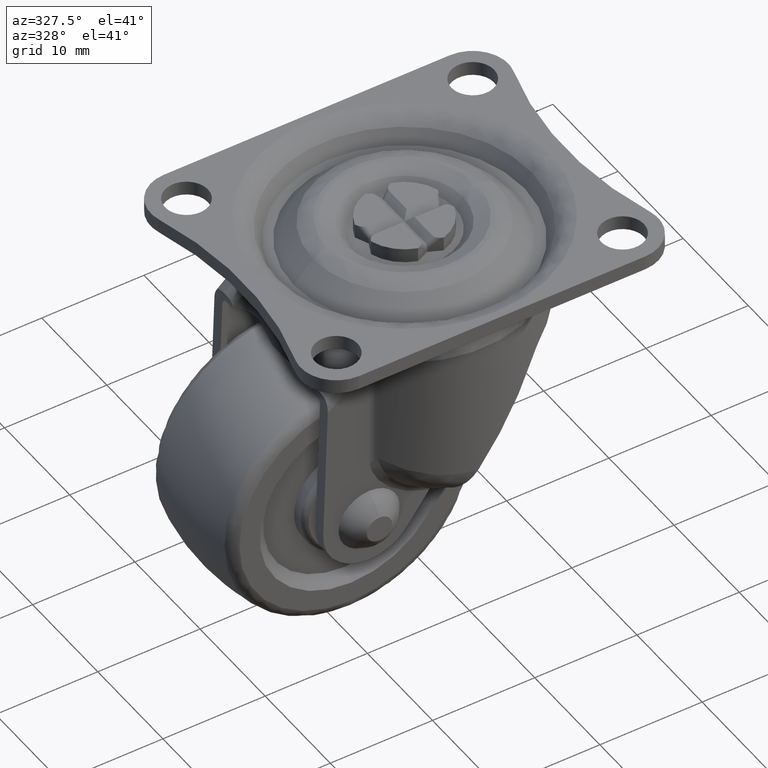
[diagram: clean part render]
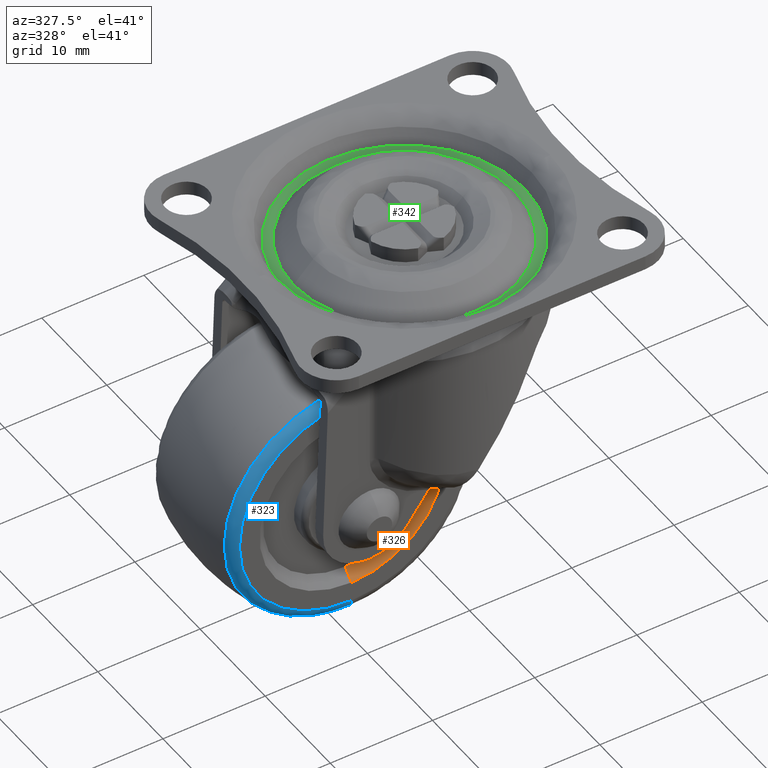
[diagram: same view with three faces highlighted in distinct colors, each labeled with its STEP entity id]
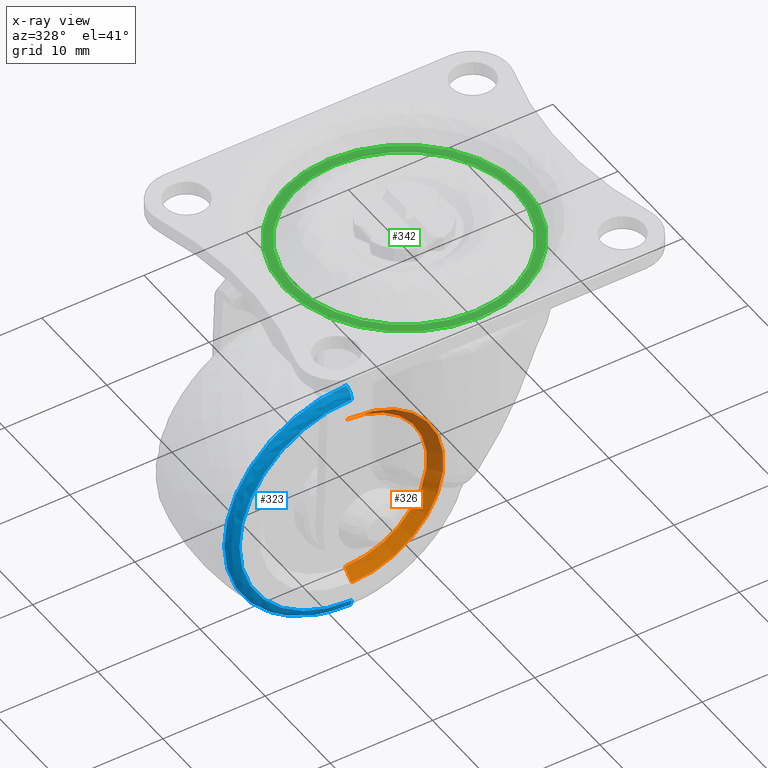
[diagram: x-ray of the same camera — body ghosted, the three highlighted faces saturated]
A machine part, auxiliary view with three faces highlighted in distinct colors.
The next image is the same camera in x-ray (body ghosted, the three faces saturated) — at least one of them is partly hidden behind the body in this view.
Their STEP definitions:

[orange] entity #326 — the highlighted face is a freeform B-spline surface patch.
#326=ADVANCED_FACE('',(#1505),#1504,.F.);
#1504=( BOUNDED_SURFACE() B_SPLINE_SURFACE( 2,1,((#4223,#4224),(#4225,#4226),(#4227,#4228),(#4229,#4230),(#4231,#4232)), .UNSPECIFIED.,.F.,.F.,.F.) B_SPLINE_SURFACE_WITH_KNOTS((3,2,3),(2,2),(0.00000000000E+00,5.00000000000E-01,1.00000000000E+00),(0.00000000000E+00,1.00000000000E+00), .UNSPECIFIED. ) GEOMETRIC_REPRESENTATION_ITEM() RATIONAL_B_SPLINE_SURFACE(((1.00000000000E+00,1.00000000000E+00),(7.07106781187E-01,7.07106781187E-01),(1.00000000000E+00,1.00000000000E+00),(7.07106781187E-01,7.07106781187E-01),(1.00000000000E+00,1.00000000000E+00))) REPRESENTATION_ITEM('') SURFACE() );
#1505=FACE_OUTER_BOUND('',#4233,.T.);
#4223=CARTESIAN_POINT('',(-9.00000000000E+00,-5.00000000000E+00,-3.04999980000E+01));
#4224=CARTESIAN_POINT('',(-9.00000000000E+00,-6.00000000000E+00,-3.14999980000E+01));
#4225=CARTESIAN_POINT('',(-1.00000000000E+00,-5.00000000000E+00,-3.04999980000E+01));
#4226=CARTESIAN_POINT('',(0.00000000000E+00,-6.00000000000E+00,-3.14999980000E+01));
#4227=CARTESIAN_POINT('',(-1.00000000000E+00,-5.00000000000E+00,-2.24999980000E+01));
#4228=CARTESIAN_POINT('',(0.00000000000E+00,-6.00000000000E+00,-2.24999980000E+01));
#4229=CARTESIAN_POINT('',(-1.00000000000E+00,-5.00000000000E+00,-1.44999980000E+01));
#4230=CARTESIAN_POINT('',(-1.25607396695E-15,-6.00000000000E+00,-1.34999980000E+01));
#4231=CARTESIAN_POINT('',(-9.00000000000E+00,-5.00000000000E+00,-1.44999980000E+01));
#4232=CARTESIAN_POINT('',(-9.00000000000E+00,-6.00000000000E+00,-1.34999980000E+01));
#4233=EDGE_LOOP('',(#5857,#5858,#5859,#5860));
#5857=ORIENTED_EDGE('',*,*,#6652,.T.);
#5858=ORIENTED_EDGE('',*,*,#6681,.F.);
#5859=ORIENTED_EDGE('',*,*,#6653,.F.);
#5860=ORIENTED_EDGE('',*,*,#6682,.T.);
#6652=EDGE_CURVE('',#8509,#8508,#8516,.T.);
#6653=EDGE_CURVE('',#8522,#8523,#8524,.T.);
#6681=EDGE_CURVE('',#8523,#8508,#8702,.T.);
#6682=EDGE_CURVE('',#8522,#8509,#8708,.T.);
#8508=VERTEX_POINT('',#11890);
#8509=VERTEX_POINT('',#11891);
#8516=CIRCLE('',#11899,9.00000000000E+00);
#8522=VERTEX_POINT('',#11900);
#8523=VERTEX_POINT('',#11901);
#8524=CIRCLE('',#11905,8.00000000000E+00);
#8702=(BOUNDED_CURVE() B_SPLINE_CURVE(1,(#12004,#12005),.UNSPECIFIED.,.F.,.F.) B_SPLINE_CURVE_WITH_KNOTS((2,2),(0.00000000000E+00,1.00000000000E+00),.UNSPECIFIED.) CURVE() GEOMETRIC_REPRESENTATION_ITEM() RATIONAL_B_SPLINE_CURVE((1.00000000000E+00,1.00000000000E+00)) REPRESENTATION_ITEM('') );
#8708=(BOUNDED_CURVE() B_SPLINE_CURVE(1,(#12006,#12007),.UNSPECIFIED.,.F.,.F.) B_SPLINE_CURVE_WITH_KNOTS((2,2),(0.00000000000E+00,1.00000000000E+00),.UNSPECIFIED.) CURVE() GEOMETRIC_REPRESENTATION_ITEM() RATIONAL_B_SPLINE_CURVE((7.50000000000E-01,7.50000000000E-01)) REPRESENTATION_ITEM('') );
#11890=CARTESIAN_POINT('',(-9.00000000000E+00,-6.00000000000E+00,-1.34999980000E+01));
#11891=CARTESIAN_POINT('',(-9.00000000000E+00,-6.00000000000E+00,-3.14999980000E+01));
#11896=CARTESIAN_POINT('',(-9.00000000000E+00,-6.00000000000E+00,-2.24999980000E+01));
#11897=DIRECTION('',(0.00000000000E+00,-1.00000000000E+00,-0.00000000000E+00));
#11898=DIRECTION('',(-1.22460635382E-16,0.00000000000E+00,-1.00000000000E+00));
#11899=AXIS2_PLACEMENT_3D('',#11896,#11897,#11898);
#11900=CARTESIAN_POINT('',(-9.00000000000E+00,-5.00000000000E+00,-3.04999980000E+01));
#11901=CARTESIAN_POINT('',(-9.00000000000E+00,-5.00000000000E+00,-1.44999980000E+01));
#11902=CARTESIAN_POINT('',(-9.00000000000E+00,-5.00000000000E+00,-2.24999980000E+01));
#11903=DIRECTION('',(0.00000000000E+00,-1.00000000000E+00,-0.00000000000E+00));
#11904=DIRECTION('',(-1.22460635382E-16,0.00000000000E+00,-1.00000000000E+00));
#11905=AXIS2_PLACEMENT_3D('',#11902,#11903,#11904);
#12004=CARTESIAN_POINT('',(-9.00000000000E+00,-5.00000000000E+00,-1.44999980000E+01));
#12005=CARTESIAN_POINT('',(-9.00000000000E+00,-6.00000000000E+00,-1.34999980000E+01));
#12006=CARTESIAN_POINT('',(-9.00000000000E+00,-5.00000000000E+00,-3.04999980000E+01));
#12007=CARTESIAN_POINT('',(-9.00000000000E+00,-6.00000000000E+00,-3.14999980000E+01));

[blue] entity #323 — the highlighted face is a freeform B-spline surface patch.
#323=ADVANCED_FACE('',(#1475),#1474,.T.);
#1474=( BOUNDED_SURFACE() B_SPLINE_SURFACE( 2,2,((#4160,#4161,#4162,#4163,#4164),(#4165,#4166,#4167,#4168,#4169),(#4170,#4171,#4172,#4173,#4174),(#4175,#4176,#4177,#4178,#4179),(#4180,#4181,#4182,#4183,#4184)), .UNSPECIFIED.,.F.,.F.,.F.) B_SPLINE_SURFACE_WITH_KNOTS((3,2,3),(3,2,3),(0.00000000000E+00,5.00000000000E-01,1.00000000000E+00),(0.00000000000E+00,5.00000000000E-01,1.00000000000E+00), .UNSPECIFIED. ) GEOMETRIC_REPRESENTATION_ITEM() RATIONAL_B_SPLINE_SURFACE(((1.00000000000E+00,7.77281587757E-01,1.00000000000E+00,7.77281587757E-01,1.00000000000E+00),(7.07106781187E-01,5.49621081595E-01,7.07106781187E-01,5.49621081595E-01,7.07106781187E-01),(1.00000000000E+00,7.77281587757E-01,1.00000000000E+00,7.77281587757E-01,1.00000000000E+00),(7.07106781187E-01,5.49621081595E-01,7.07106781187E-01,5.49621081595E-01,7.07106781187E-01),(1.00000000000E+00,7.77281587757E-01,1.00000000000E+00,7.77281587757E-01,1.00000000000E+00))) REPRESENTATION_ITEM('') SURFACE() );
#1475=FACE_OUTER_BOUND('',#4185,.T.);
#4160=CARTESIAN_POINT('',(-9.00000000000E+00,-5.20833333333E+00,-1.05485509285E+01));
#4161=CARTESIAN_POINT('',(-9.00000000000E+00,-6.00000000000E+00,-1.07171815980E+01));
#4162=CARTESIAN_POINT('',(-9.00000000000E+00,-6.00000000000E+00,-1.15266088114E+01));
#4163=CARTESIAN_POINT('',(-9.00000000000E+00,-6.00000000000E+00,-1.23360360248E+01));
#4164=CARTESIAN_POINT('',(-9.00000000000E+00,-5.20833333333E+00,-1.25046666942E+01));
#4165=CARTESIAN_POINT('',(-2.09514470715E+01,-5.20833333333E+00,-1.05485509285E+01));
#4166=CARTESIAN_POINT('',(-2.07828164020E+01,-6.00000000000E+00,-1.07171815980E+01));
#4167=CARTESIAN_POINT('',(-1.99733891886E+01,-6.00000000000E+00,-1.15266088114E+01));
#4168=CARTESIAN_POINT('',(-1.91639619752E+01,-6.00000000000E+00,-1.23360360248E+01));
#4169=CARTESIAN_POINT('',(-1.89953313058E+01,-5.20833333333E+00,-1.25046666942E+01));
#4170=CARTESIAN_POINT('',(-2.09514470715E+01,-5.20833333333E+00,-2.24999980000E+01));
#4171=CARTESIAN_POINT('',(-2.07828164020E+01,-6.00000000000E+00,-2.24999980000E+01));
#4172=CARTESIAN_POINT('',(-1.99733891886E+01,-6.00000000000E+00,-2.24999980000E+01));
#4173=CARTESIAN_POINT('',(-1.91639619752E+01,-6.00000000000E+00,-2.24999980000E+01));
#4174=CARTESIAN_POINT('',(-1.89953313058E+01,-5.20833333333E+00,-2.24999980000E+01));
#4175=CARTESIAN_POINT('',(-2.09514470715E+01,-5.20833333333E+00,-3.44514450715E+01));
#4176=CARTESIAN_POINT('',(-2.07828164020E+01,-6.00000000000E+00,-3.42828144020E+01));
#4177=CARTESIAN_POINT('',(-1.99733891886E+01,-6.00000000000E+00,-3.34733871886E+01));
#4178=CARTESIAN_POINT('',(-1.91639619752E+01,-6.00000000000E+00,-3.26639599752E+01));
#4179=CARTESIAN_POINT('',(-1.89953313058E+01,-5.20833333333E+00,-3.24953293058E+01));
#4180=CARTESIAN_POINT('',(-9.00000000000E+00,-5.20833333333E+00,-3.44514450715E+01));
#4181=CARTESIAN_POINT('',(-9.00000000000E+00,-6.00000000000E+00,-3.42828144020E+01));
#4182=CARTESIAN_POINT('',(-9.00000000000E+00,-6.00000000000E+00,-3.34733871886E+01));
#4183=CARTESIAN_POINT('',(-9.00000000000E+00,-6.00000000000E+00,-3.26639599752E+01));
#4184=CARTESIAN_POINT('',(-9.00000000000E+00,-5.20833333333E+00,-3.24953293058E+01));
#4185=EDGE_LOOP('',(#5845,#5846,#5847,#5848));
#5845=ORIENTED_EDGE('',*,*,#6650,.F.);
#5846=ORIENTED_EDGE('',*,*,#6679,.F.);
#5847=ORIENTED_EDGE('',*,*,#6678,.T.);
#5848=ORIENTED_EDGE('',*,*,#6680,.T.);
#6650=EDGE_CURVE('',#8495,#8494,#8502,.T.);
#6678=EDGE_CURVE('',#8664,#8671,#8684,.T.);
#6679=EDGE_CURVE('',#8664,#8495,#8690,.T.);
#6680=EDGE_CURVE('',#8671,#8494,#8696,.T.);
#8494=VERTEX_POINT('',#11880);
#8495=VERTEX_POINT('',#11881);
#8502=CIRCLE('',#11889,1.09733891886E+01);
#8664=VERTEX_POINT('',#11981);
#8671=VERTEX_POINT('',#11985);
#8684=CIRCLE('',#11996,1.19514470715E+01);
#8690=(BOUNDED_CURVE() B_SPLINE_CURVE(2,(#11997,#11998,#11999),.UNSPECIFIED.,.F.,.F.) B_SPLINE_CURVE_WITH_KNOTS((3,3),(0.00000000000E+00,5.00000000000E-01),.UNSPECIFIED.) CURVE() GEOMETRIC_REPRESENTATION_ITEM() RATIONAL_B_SPLINE_CURVE((1.00000000000E+00,7.77281587757E-01,1.00000000000E+00)) REPRESENTATION_ITEM('') );
#8696=(BOUNDED_CURVE() B_SPLINE_CURVE(3,(#12000,#12001,#12002,#12003),.UNSPECIFIED.,.F.,.F.) B_SPLINE_CURVE_WITH_KNOTS((4,4),(0.00000000000E+00,5.00000000639E-01),.UNSPECIFIED.) CURVE() GEOMETRIC_REPRESENTATION_ITEM() RATIONAL_B_SPLINE_CURVE((1.00000000000E+00,1.00000000000E+00,1.00000000000E+00,1.00000000000E+00)) REPRESENTATION_ITEM('') );
#11880=CARTESIAN_POINT('',(-9.00000000000E+00,-6.00000000000E+00,-3.34733871886E+01));
#11881=CARTESIAN_POINT('',(-9.00000000000E+00,-6.00000000000E+00,-1.15266088114E+01));
#11886=CARTESIAN_POINT('',(-9.00000000000E+00,-6.00000000000E+00,-2.24999980000E+01));
#11887=DIRECTION('',(0.00000000000E+00,-1.00000000000E+00,-0.00000000000E+00));
#11888=DIRECTION('',(-1.22460635382E-16,0.00000000000E+00,-1.00000000000E+00));
#11889=AXIS2_PLACEMENT_3D('',#11886,#11887,#11888);
#11981=CARTESIAN_POINT('',(-9.00000000000E+00,-5.20833333333E+00,-1.05485509285E+01));
#11985=CARTESIAN_POINT('',(-9.00000000000E+00,-5.20833333333E+00,-3.44514450715E+01));
#11993=CARTESIAN_POINT('',(-9.00000000000E+00,-5.20833333333E+00,-2.24999980000E+01));
#11994=DIRECTION('',(0.00000000000E+00,-1.00000000000E+00,-0.00000000000E+00));
#11995=DIRECTION('',(-1.22460635382E-16,0.00000000000E+00,-1.00000000000E+00));
#11996=AXIS2_PLACEMENT_3D('',#11993,#11994,#11995);
#11997=CARTESIAN_POINT('',(-9.00000000000E+00,-5.20833333333E+00,-1.05485509285E+01));
#11998=CARTESIAN_POINT('',(-9.00000000000E+00,-6.00000000000E+00,-1.07171815980E+01));
#11999=CARTESIAN_POINT('',(-9.00000000000E+00,-6.00000000000E+00,-1.15266088114E+01));
#12000=CARTESIAN_POINT('',(-9.00000000000E+00,-5.20833333333E+00,-3.44514450715E+01));
#12001=CARTESIAN_POINT('',(-9.00000000000E+00,-5.70304211769E+00,-3.43122576811E+01));
#12002=CARTESIAN_POINT('',(-9.00000000000E+00,-5.96693100658E+00,-3.39862383863E+01));
#12003=CARTESIAN_POINT('',(-9.00000000000E+00,-6.00000000000E+00,-3.34733871870E+01));

[green] entity #342 — the highlighted planar face has unit normal (0, 0, 1).
#342=ADVANCED_FACE('',(#1678,#1679),#1677,.T.);
#1677=PLANE('',#4325);
#1678=FACE_OUTER_BOUND('',#4326,.T.);
#1679=FACE_BOUND('',#4327,.T.);
#4322=CARTESIAN_POINT('',(-1.52750000000E+01,-2.44219163867E+01,-2.50000200000E+00));
#4323=DIRECTION('',(0.00000000000E+00,0.00000000000E+00,1.00000000000E+00));
#4324=DIRECTION('',(1.00000000000E+00,0.00000000000E+00,0.00000000000E+00));
#4325=AXIS2_PLACEMENT_3D('',#4322,#4323,#4324);
#4326=EDGE_LOOP('',(#5950,#5951));
#4327=EDGE_LOOP('',(#5952,#5953));
#5950=ORIENTED_EDGE('',*,*,#6742,.F.);
#5951=ORIENTED_EDGE('',*,*,#6743,.F.);
#5952=ORIENTED_EDGE('',*,*,#6744,.T.);
#5953=ORIENTED_EDGE('',*,*,#6745,.T.);
#6742=EDGE_CURVE('',#9117,#9118,#9119,.T.);
#6743=EDGE_CURVE('',#9118,#9117,#9125,.T.);
#6744=EDGE_CURVE('',#9131,#9132,#9133,.T.);
#6745=EDGE_CURVE('',#9132,#9131,#9139,.T.);
#9117=VERTEX_POINT('',#12277);
#9118=VERTEX_POINT('',#12278);
#9119=CIRCLE('',#12282,1.17500000000E+01);
#9125=CIRCLE('',#12286,1.17500000000E+01);
#9131=VERTEX_POINT('',#12287);
#9132=VERTEX_POINT('',#12288);
#9133=CIRCLE('',#12292,1.08500000000E+01);
#9139=CIRCLE('',#12296,1.08500000000E+01);
#12277=CARTESIAN_POINT('',(1.17500000000E+01,7.10542735760E-15,-2.50000200000E+00));
#12278=CARTESIAN_POINT('',(-1.17500000000E+01,0.00000000000E+00,-2.50000200000E+00));
#12279=CARTESIAN_POINT('',(0.00000000000E+00,0.00000000000E+00,-2.50000200000E+00));
#12280=DIRECTION('',(-0.00000000000E+00,0.00000000000E+00,-1.00000000000E+00));
#12281=DIRECTION('',(-1.00000000000E+00,-1.22460635382E-16,0.00000000000E+00));
#12282=AXIS2_PLACEMENT_3D('',#12279,#12280,#12281);
#12283=CARTESIAN_POINT('',(0.00000000000E+00,0.00000000000E+00,-2.50000200000E+00));
#12284=DIRECTION('',(-0.00000000000E+00,0.00000000000E+00,-1.00000000000E+00));
#12285=DIRECTION('',(-1.00000000000E+00,-1.22460635382E-16,0.00000000000E+00));
#12286=AXIS2_PLACEMENT_3D('',#12283,#12284,#12285);
#12287=CARTESIAN_POINT('',(-1.08500000000E+01,0.00000000000E+00,-2.50000200000E+00));
#12288=CARTESIAN_POINT('',(1.08500000000E+01,5.92118946467E-16,-2.50000200000E+00));
#12289=CARTESIAN_POINT('',(0.00000000000E+00,0.00000000000E+00,-2.50000200000E+00));
#12290=DIRECTION('',(-0.00000000000E+00,0.00000000000E+00,-1.00000000000E+00));
#12291=DIRECTION('',(-1.00000000000E+00,-1.22460635382E-16,0.00000000000E+00));
#12292=AXIS2_PLACEMENT_3D('',#12289,#12290,#12291);
#12293=CARTESIAN_POINT('',(0.00000000000E+00,0.00000000000E+00,-2.50000200000E+00));
#12294=DIRECTION('',(-0.00000000000E+00,0.00000000000E+00,-1.00000000000E+00));
#12295=DIRECTION('',(-1.00000000000E+00,-1.22460635382E-16,0.00000000000E+00));
#12296=AXIS2_PLACEMENT_3D('',#12293,#12294,#12295);